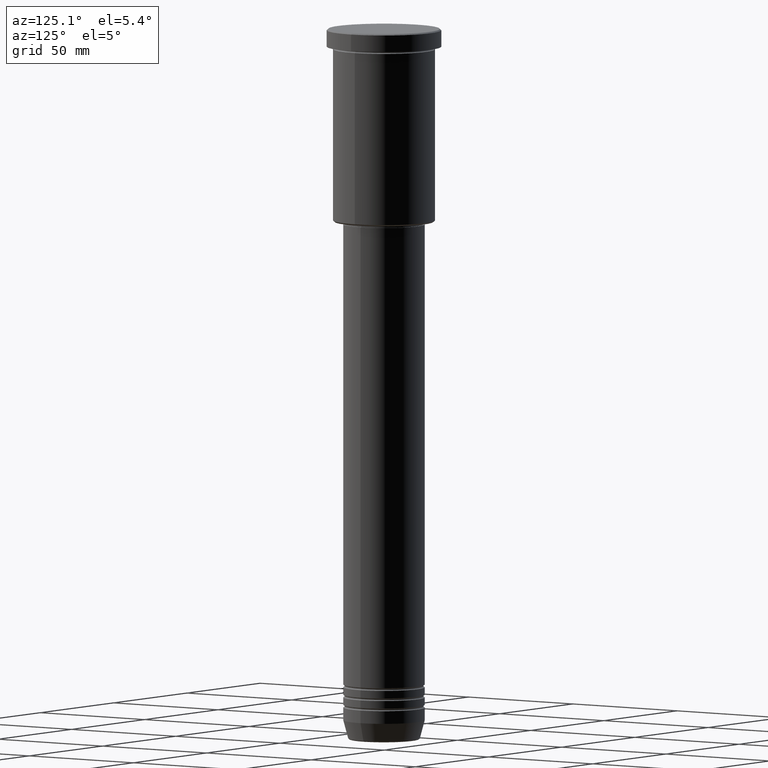
[diagram: clean part render]
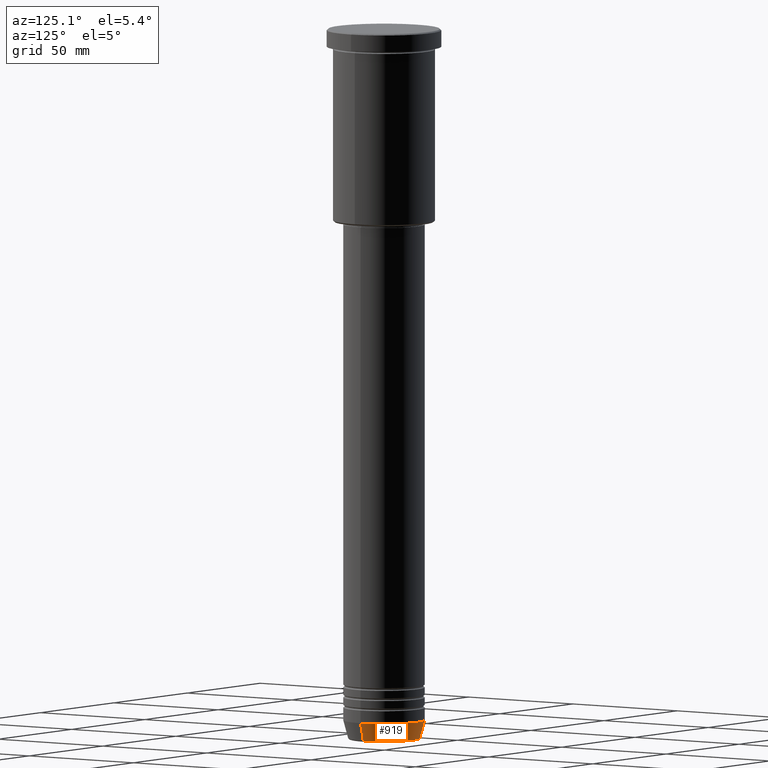
[diagram: same view with one face highlighted and labeled with its STEP entity id]
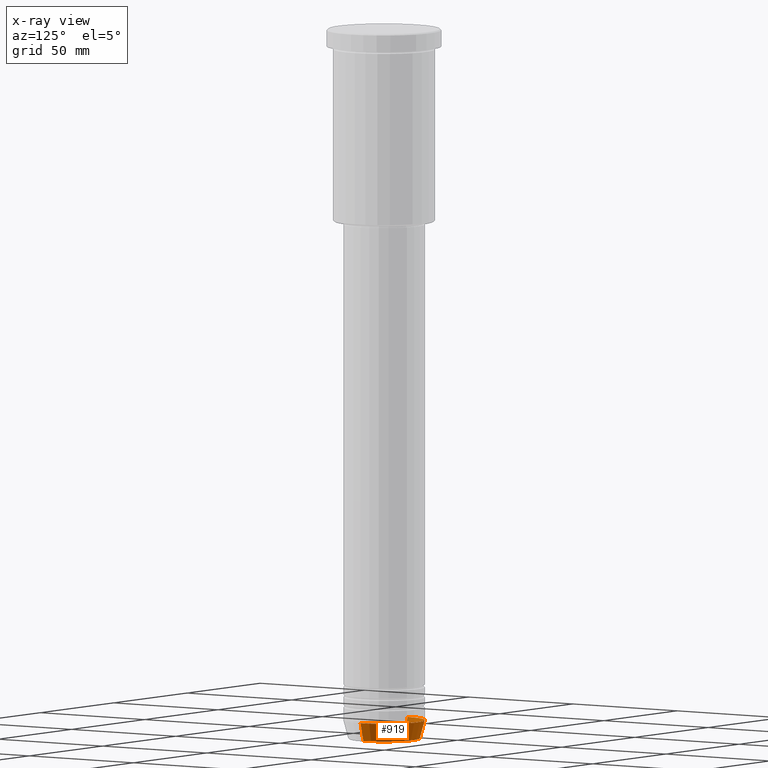
[diagram: x-ray of the same camera — body ghosted, the highlighted face saturated]
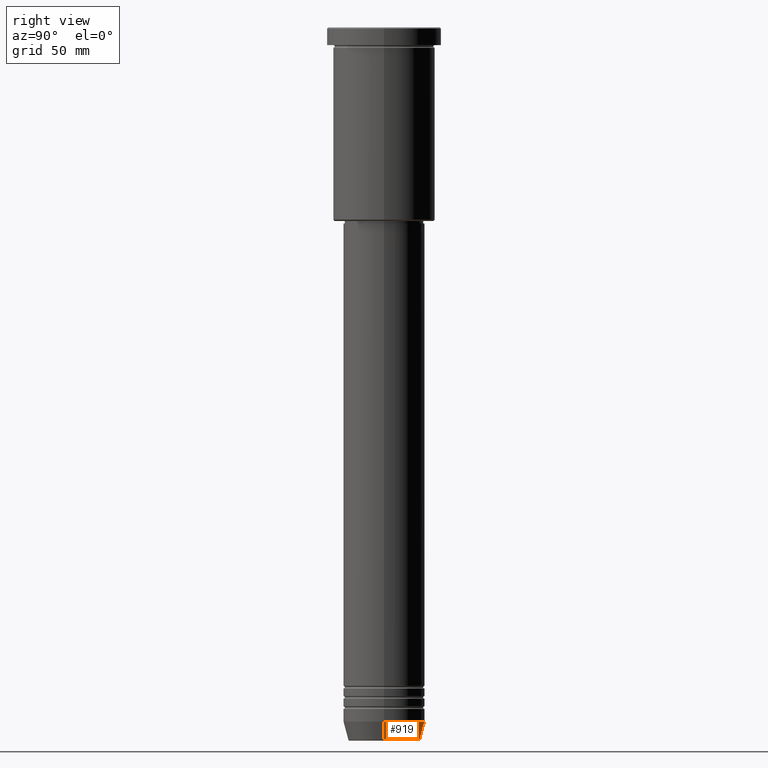
[diagram: same view with one face highlighted and labeled with its STEP entity id]
A machine part, auxiliary view. The second image highlights one B-rep face of the part: STEP entity #919.
The next image is the same camera in x-ray: the body ghosted, the highlighted face saturated — about 0% of this face is hidden behind the body in this view.
A second angle (right view) of the same face is appended — the face is thin or edge-on in the first view.
In plain terms, the highlighted conical surface has half-angle 15 deg.
Its self-contained STEP definition (entity closure, byte-faithful):
#51 = CARTESIAN_POINT ( 'NONE',  ( 16.00000000000000000, 0.000000000000000000, -272.5000000000000000 ) ) ;
#55 = CARTESIAN_POINT ( 'NONE',  ( 0.000000000000000000, 0.000000000000000000, -279.6294095225512706 ) ) ;
#70 = VECTOR ( 'NONE', #500, 1000.000000000000000 ) ;
#87 = VERTEX_POINT ( 'NONE', #51 ) ;
#132 = CIRCLE ( 'NONE', #526, 16.00000000000000000 ) ;
#159 = ORIENTED_EDGE ( 'NONE', *, *, #809, .T. ) ;
#229 = EDGE_CURVE ( 'NONE', #891, #87, #489, .T. ) ;
#239 = DIRECTION ( 'NONE',  ( -0.000000000000000000, -0.000000000000000000, 1.000000000000000000 ) ) ;
#248 = DIRECTION ( 'NONE',  ( 1.000000000000000000, 0.000000000000000000, 0.000000000000000000 ) ) ;
#282 = EDGE_CURVE ( 'NONE', #891, #877, #810, .T. ) ;
#300 = VECTOR ( 'NONE', #1182, 1000.000000000000000 ) ;
#439 = ORIENTED_EDGE ( 'NONE', *, *, #282, .T. ) ;
#447 = DIRECTION ( 'NONE',  ( 1.000000000000000000, 0.000000000000000000, 0.000000000000000000 ) ) ;
#462 = EDGE_CURVE ( 'NONE', #87, #542, #132, .T. ) ;
#489 = LINE ( 'NONE', #631, #300 ) ;
#500 = DIRECTION ( 'NONE',  ( -0.2588190451025213501, 3.169619151431772337E-17, 0.9659258262890680902 ) ) ;
#504 = CARTESIAN_POINT ( 'NONE',  ( 14.08968047592161632, 0.000000000000000000, -279.6294095225512706 ) ) ;
#526 = AXIS2_PLACEMENT_3D ( 'NONE', #599, #889, #447 ) ;
#542 = VERTEX_POINT ( 'NONE', #902 ) ;
#599 = CARTESIAN_POINT ( 'NONE',  ( 0.000000000000000000, 0.000000000000000000, -272.5000000000000000 ) ) ;
#631 = CARTESIAN_POINT ( 'NONE',  ( 16.00000000000000000, 0.000000000000000000, -272.5000000000000000 ) ) ;
#695 = CARTESIAN_POINT ( 'NONE',  ( -16.00000000000000000, 1.959434878635765131E-15, -272.5000000000000000 ) ) ;
#729 = DIRECTION ( 'NONE',  ( -0.000000000000000000, -0.000000000000000000, 1.000000000000000000 ) ) ;
#750 = ORIENTED_EDGE ( 'NONE', *, *, #462, .F. ) ;
#754 = AXIS2_PLACEMENT_3D ( 'NONE', #1083, #729, #248 ) ;
#774 = AXIS2_PLACEMENT_3D ( 'NONE', #55, #239, #972 ) ;
#809 = EDGE_CURVE ( 'NONE', #877, #542, #1048, .T. ) ;
#810 = CIRCLE ( 'NONE', #774, 14.08968047592161632 ) ;
#815 = CONICAL_SURFACE ( 'NONE', #754, 16.00000000000000000, 0.2617993877991500740 ) ;
#817 = EDGE_LOOP ( 'NONE', ( #439, #159, #750, #937 ) ) ;
#877 = VERTEX_POINT ( 'NONE', #959 ) ;
#889 = DIRECTION ( 'NONE',  ( -0.000000000000000000, -0.000000000000000000, 1.000000000000000000 ) ) ;
#891 = VERTEX_POINT ( 'NONE', #504 ) ;
#902 = CARTESIAN_POINT ( 'NONE',  ( -16.00000000000000000, 1.959434878635765131E-15, -272.5000000000000000 ) ) ;
#919 = ADVANCED_FACE ( 'NONE', ( #1175 ), #815, .T. ) ;
#937 = ORIENTED_EDGE ( 'NONE', *, *, #229, .F. ) ;
#959 = CARTESIAN_POINT ( 'NONE',  ( -14.08968047592161632, 1.842461544110200874E-15, -279.6294095225512706 ) ) ;
#972 = DIRECTION ( 'NONE',  ( 1.000000000000000000, 0.000000000000000000, 0.000000000000000000 ) ) ;
#1048 = LINE ( 'NONE', #695, #70 ) ;
#1083 = CARTESIAN_POINT ( 'NONE',  ( 0.000000000000000000, 0.000000000000000000, -272.5000000000000000 ) ) ;
#1175 = FACE_OUTER_BOUND ( 'NONE', #817, .T. ) ;
#1182 = DIRECTION ( 'NONE',  ( 0.2588190451025213501, 0.000000000000000000, 0.9659258262890680902 ) ) ;